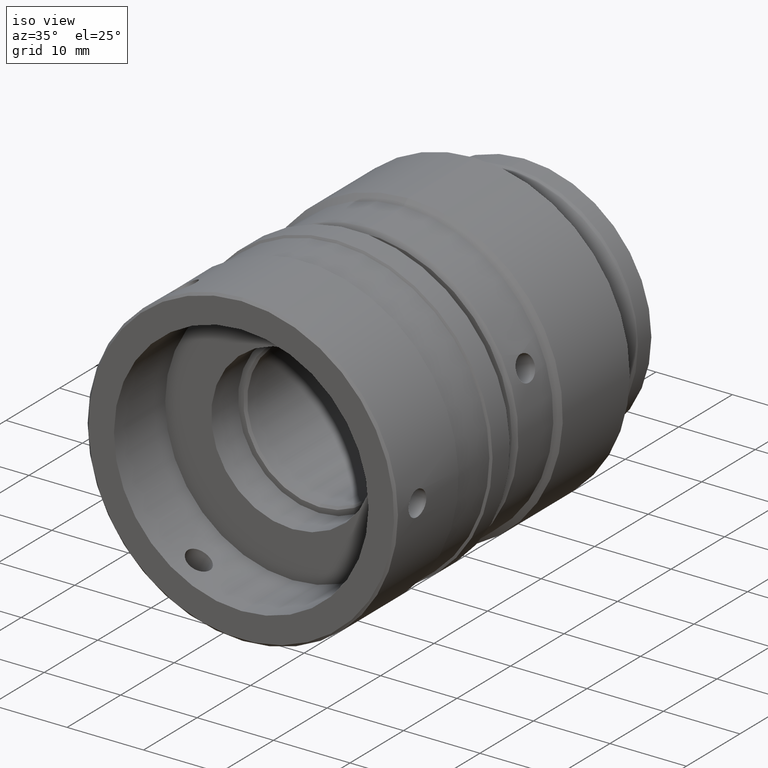
[diagram: clean part render]
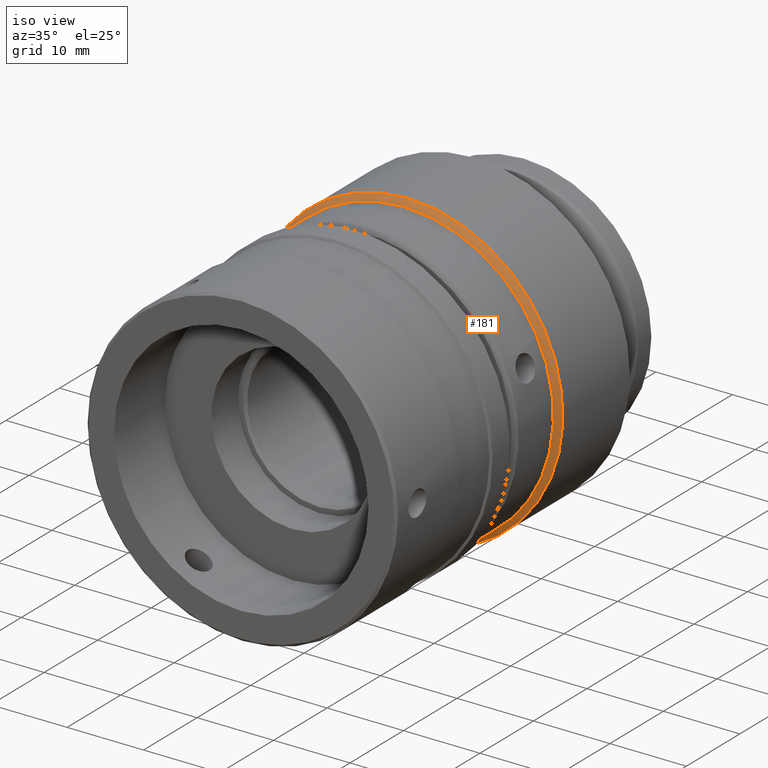
[diagram: same view with one face highlighted and labeled with its STEP entity id]
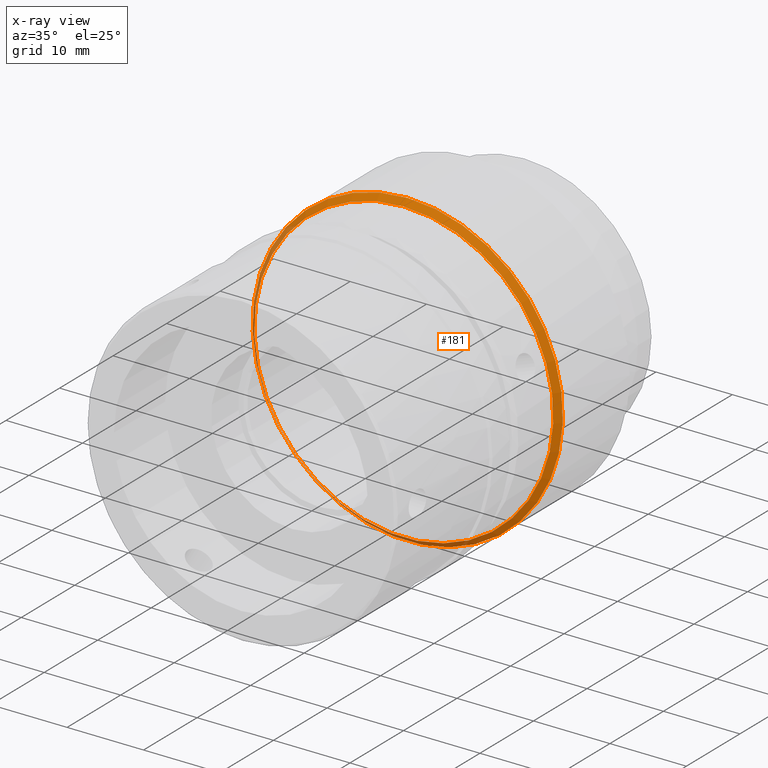
[diagram: x-ray of the same camera — body ghosted, the highlighted face saturated]
A machine part, iso view. The second image highlights one B-rep face of the part: STEP entity #181.
The next image is the same camera in x-ray: the body ghosted, the highlighted face saturated — about 16% of this face is hidden behind the body in this view.
In plain terms, the highlighted conical surface has half-angle 45 deg.
Its self-contained STEP definition (entity closure, byte-faithful):
#31 = EDGE_CURVE ( 'NONE', #1802, #1802, #284, .T. ) ;
#135 = CONICAL_SURFACE ( 'NONE', #1799, 20.30000000000001137, 0.7853981633974435050 ) ;
#181 = ADVANCED_FACE ( 'NONE', ( #1241, #681 ), #135, .T. ) ;
#284 = CIRCLE ( 'NONE', #324, 19.57000000000000384 ) ;
#285 = EDGE_LOOP ( 'NONE', ( #1068 ) ) ;
#306 = DIRECTION ( 'NONE',  ( -0.000000000000000000, 1.000000000000000000, 0.000000000000000000 ) ) ;
#324 = AXIS2_PLACEMENT_3D ( 'NONE', #843, #1907, #1407 ) ;
#639 = CARTESIAN_POINT ( 'NONE',  ( 14.30252365930601322, 7.489826498423066248, 20.30000000000001137 ) ) ;
#681 = FACE_BOUND ( 'NONE', #285, .T. ) ;
#738 = EDGE_LOOP ( 'NONE', ( #1783 ) ) ;
#740 = CARTESIAN_POINT ( 'NONE',  ( 14.30252365930601322, 6.759826498423050722, 19.57000000000000384 ) ) ;
#817 = EDGE_CURVE ( 'NONE', #1725, #1725, #1914, .T. ) ;
#843 = CARTESIAN_POINT ( 'NONE',  ( 14.30252365930601322, 6.759826498423050722, 0.000000000000000000 ) ) ;
#900 = AXIS2_PLACEMENT_3D ( 'NONE', #1411, #2120, #1659 ) ;
#1001 = DIRECTION ( 'NONE',  ( 0.000000000000000000, 0.000000000000000000, 1.000000000000000000 ) ) ;
#1068 = ORIENTED_EDGE ( 'NONE', *, *, #31, .T. ) ;
#1241 = FACE_OUTER_BOUND ( 'NONE', #738, .T. ) ;
#1407 = DIRECTION ( 'NONE',  ( 0.000000000000000000, 0.000000000000000000, 1.000000000000000000 ) ) ;
#1411 = CARTESIAN_POINT ( 'NONE',  ( 14.30252365930601322, 7.489826498423066248, 0.000000000000000000 ) ) ;
#1659 = DIRECTION ( 'NONE',  ( 0.000000000000000000, 0.000000000000000000, 1.000000000000000000 ) ) ;
#1725 = VERTEX_POINT ( 'NONE', #639 ) ;
#1783 = ORIENTED_EDGE ( 'NONE', *, *, #817, .F. ) ;
#1799 = AXIS2_PLACEMENT_3D ( 'NONE', #1931, #306, #1001 ) ;
#1802 = VERTEX_POINT ( 'NONE', #740 ) ;
#1907 = DIRECTION ( 'NONE',  ( 0.000000000000000000, 1.000000000000000000, 0.000000000000000000 ) ) ;
#1914 = CIRCLE ( 'NONE', #900, 20.30000000000001137 ) ;
#1931 = CARTESIAN_POINT ( 'NONE',  ( 14.30252365930601322, 7.489826498423066248, 0.000000000000000000 ) ) ;
#2120 = DIRECTION ( 'NONE',  ( 0.000000000000000000, 1.000000000000000000, 0.000000000000000000 ) ) ;